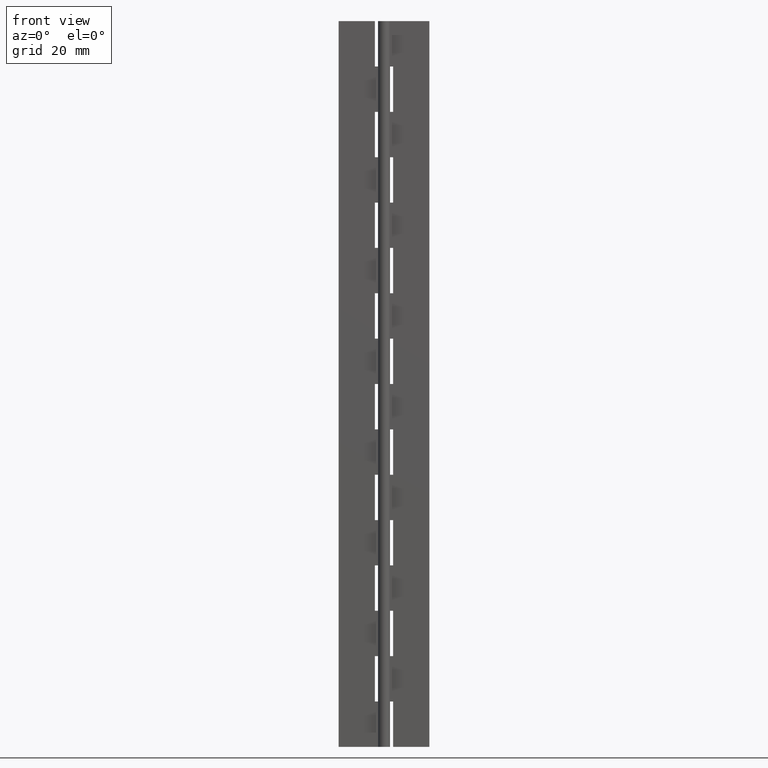
[diagram: clean part render]
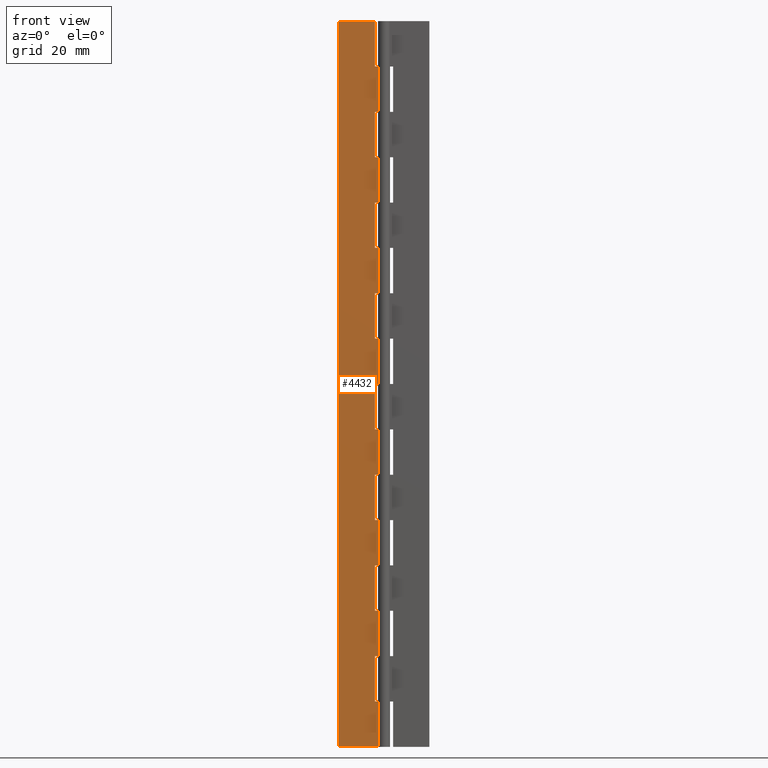
[diagram: same view with one face highlighted and labeled with its STEP entity id]
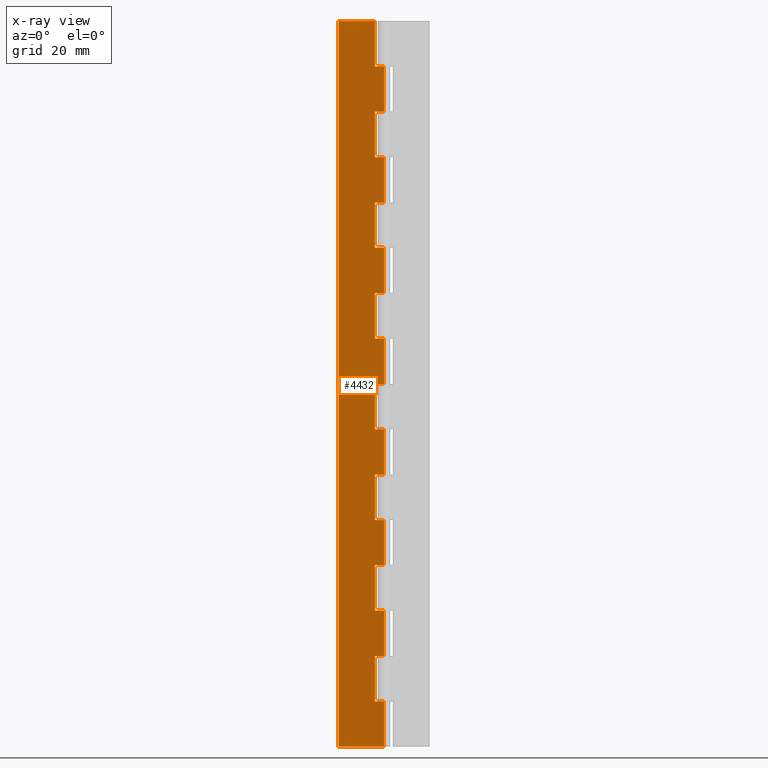
[diagram: x-ray of the same camera — body ghosted, the highlighted face saturated]
A machine part, front view. The second image highlights one B-rep face of the part: STEP entity #4432.
The next image is the same camera in x-ray: the body ghosted, the highlighted face saturated — about 0% of this face is hidden behind the body in this view.
In plain terms, the highlighted face is a freeform B-spline surface patch.
Its self-contained STEP definition (entity closure, byte-faithful):
#2335=CARTESIAN_POINT('',(-1.499999999999986,0.499999999999945,112.500000000000000));
#2336=VERTEX_POINT('',#2335);
#2342=CARTESIAN_POINT('',(3.061230E-017,0.500000000000000,112.500000000000000));
#2343=VERTEX_POINT('',#2342);
#2344=CARTESIAN_POINT('',(3.061230E-017,0.500000000000000,112.500000000000000));
#2345=CARTESIAN_POINT('',(-1.499999999999986,0.499999999999945,112.500000000000000));
#2346=QUASI_UNIFORM_CURVE('',1,(#2344,#2345),.UNSPECIFIED.,.F.,.U.);
#2347=EDGE_CURVE('',#2343,#2336,#2346,.T.);
#2412=CARTESIAN_POINT('',(-1.499999999999986,0.499999999999945,120.0));
#2413=VERTEX_POINT('',#2412);
#2419=CARTESIAN_POINT('',(-1.499999999999986,0.499999999999945,112.500000000000000));
#2420=CARTESIAN_POINT('',(-1.499999999999986,0.499999999999945,120.0));
#2421=QUASI_UNIFORM_CURVE('',1,(#2419,#2420),.UNSPECIFIED.,.F.,.U.);
#2422=EDGE_CURVE('',#2336,#2413,#2421,.T.);
#2462=CARTESIAN_POINT('',(3.061516E-017,0.500000000000000,105.0));
#2463=VERTEX_POINT('',#2462);
#2483=CARTESIAN_POINT('',(-1.499999999999986,0.499999999999945,105.0));
#2484=VERTEX_POINT('',#2483);
#2485=CARTESIAN_POINT('',(-1.499999999999986,0.499999999999945,105.0));
#2486=CARTESIAN_POINT('',(3.061516E-017,0.500000000000000,105.0));
#2487=QUASI_UNIFORM_CURVE('',1,(#2485,#2486),.UNSPECIFIED.,.F.,.U.);
#2488=EDGE_CURVE('',#2484,#2463,#2487,.T.);
#2519=CARTESIAN_POINT('',(-1.499999999999986,0.499999999999945,97.500000000000000));
#2520=VERTEX_POINT('',#2519);
#2526=CARTESIAN_POINT('',(3.061230E-017,0.500000000000000,97.500000000000000));
#2527=VERTEX_POINT('',#2526);
#2528=CARTESIAN_POINT('',(3.061230E-017,0.500000000000000,97.500000000000000));
#2529=CARTESIAN_POINT('',(-1.499999999999986,0.499999999999945,97.500000000000000));
#2530=QUASI_UNIFORM_CURVE('',1,(#2528,#2529),.UNSPECIFIED.,.F.,.U.);
#2531=EDGE_CURVE('',#2527,#2520,#2530,.T.);
#2595=CARTESIAN_POINT('',(-1.499999999999986,0.499999999999945,97.500000000000000));
#2596=CARTESIAN_POINT('',(-1.499999999999986,0.499999999999945,105.0));
#2597=QUASI_UNIFORM_CURVE('',1,(#2595,#2596),.UNSPECIFIED.,.F.,.U.);
#2598=EDGE_CURVE('',#2520,#2484,#2597,.T.);
#2638=CARTESIAN_POINT('',(3.061516E-017,0.500000000000000,90.0));
#2639=VERTEX_POINT('',#2638);
#2659=CARTESIAN_POINT('',(-1.499999999999986,0.499999999999945,90.0));
#2660=VERTEX_POINT('',#2659);
#2661=CARTESIAN_POINT('',(-1.499999999999986,0.499999999999945,90.0));
#2662=CARTESIAN_POINT('',(3.061516E-017,0.500000000000000,90.0));
#2663=QUASI_UNIFORM_CURVE('',1,(#2661,#2662),.UNSPECIFIED.,.F.,.U.);
#2664=EDGE_CURVE('',#2660,#2639,#2663,.T.);
#2695=CARTESIAN_POINT('',(-1.499999999999986,0.499999999999945,82.500000000000000));
#2696=VERTEX_POINT('',#2695);
#2702=CARTESIAN_POINT('',(3.061230E-017,0.500000000000000,82.500000000000000));
#2703=VERTEX_POINT('',#2702);
#2704=CARTESIAN_POINT('',(3.061230E-017,0.500000000000000,82.500000000000000));
#2705=CARTESIAN_POINT('',(-1.499999999999986,0.499999999999945,82.500000000000000));
#2706=QUASI_UNIFORM_CURVE('',1,(#2704,#2705),.UNSPECIFIED.,.F.,.U.);
#2707=EDGE_CURVE('',#2703,#2696,#2706,.T.);
#2771=CARTESIAN_POINT('',(-1.499999999999986,0.499999999999945,82.500000000000000));
#2772=CARTESIAN_POINT('',(-1.499999999999986,0.499999999999945,90.0));
#2773=QUASI_UNIFORM_CURVE('',1,(#2771,#2772),.UNSPECIFIED.,.F.,.U.);
#2774=EDGE_CURVE('',#2696,#2660,#2773,.T.);
#2814=CARTESIAN_POINT('',(3.061516E-017,0.500000000000000,75.0));
#2815=VERTEX_POINT('',#2814);
#2835=CARTESIAN_POINT('',(-1.499999999999986,0.499999999999945,75.0));
#2836=VERTEX_POINT('',#2835);
#2837=CARTESIAN_POINT('',(-1.499999999999986,0.499999999999945,75.0));
#2838=CARTESIAN_POINT('',(3.061516E-017,0.500000000000000,75.0));
#2839=QUASI_UNIFORM_CURVE('',1,(#2837,#2838),.UNSPECIFIED.,.F.,.U.);
#2840=EDGE_CURVE('',#2836,#2815,#2839,.T.);
#2871=CARTESIAN_POINT('',(-1.499999999999986,0.499999999999945,67.500000000000000));
#2872=VERTEX_POINT('',#2871);
#2878=CARTESIAN_POINT('',(3.061230E-017,0.500000000000000,67.500000000000000));
#2879=VERTEX_POINT('',#2878);
#2880=CARTESIAN_POINT('',(3.061230E-017,0.500000000000000,67.500000000000000));
#2881=CARTESIAN_POINT('',(-1.499999999999986,0.499999999999945,67.500000000000000));
#2882=QUASI_UNIFORM_CURVE('',1,(#2880,#2881),.UNSPECIFIED.,.F.,.U.);
#2883=EDGE_CURVE('',#2879,#2872,#2882,.T.);
#2947=CARTESIAN_POINT('',(-1.499999999999986,0.499999999999945,67.500000000000000));
#2948=CARTESIAN_POINT('',(-1.499999999999986,0.499999999999945,75.0));
#2949=QUASI_UNIFORM_CURVE('',1,(#2947,#2948),.UNSPECIFIED.,.F.,.U.);
#2950=EDGE_CURVE('',#2872,#2836,#2949,.T.);
#2990=CARTESIAN_POINT('',(3.061516E-017,0.500000000000000,60.0));
#2991=VERTEX_POINT('',#2990);
#3011=CARTESIAN_POINT('',(-1.499999999999986,0.499999999999945,60.0));
#3012=VERTEX_POINT('',#3011);
#3013=CARTESIAN_POINT('',(-1.499999999999986,0.499999999999945,60.0));
#3014=CARTESIAN_POINT('',(3.061516E-017,0.500000000000000,60.0));
#3015=QUASI_UNIFORM_CURVE('',1,(#3013,#3014),.UNSPECIFIED.,.F.,.U.);
#3016=EDGE_CURVE('',#3012,#2991,#3015,.T.);
#3047=CARTESIAN_POINT('',(-1.499999999999986,0.499999999999945,52.500000000000000));
#3048=VERTEX_POINT('',#3047);
#3054=CARTESIAN_POINT('',(3.061230E-017,0.500000000000000,52.500000000000000));
#3055=VERTEX_POINT('',#3054);
#3056=CARTESIAN_POINT('',(3.061230E-017,0.500000000000000,52.500000000000000));
#3057=CARTESIAN_POINT('',(-1.499999999999986,0.499999999999945,52.500000000000000));
#3058=QUASI_UNIFORM_CURVE('',1,(#3056,#3057),.UNSPECIFIED.,.F.,.U.);
#3059=EDGE_CURVE('',#3055,#3048,#3058,.T.);
#3123=CARTESIAN_POINT('',(-1.499999999999986,0.499999999999945,52.500000000000000));
#3124=CARTESIAN_POINT('',(-1.499999999999986,0.499999999999945,60.0));
#3125=QUASI_UNIFORM_CURVE('',1,(#3123,#3124),.UNSPECIFIED.,.F.,.U.);
#3126=EDGE_CURVE('',#3048,#3012,#3125,.T.);
#3166=CARTESIAN_POINT('',(3.061516E-017,0.500000000000000,45.0));
#3167=VERTEX_POINT('',#3166);
#3187=CARTESIAN_POINT('',(-1.499999999999986,0.499999999999945,45.0));
#3188=VERTEX_POINT('',#3187);
#3189=CARTESIAN_POINT('',(-1.499999999999986,0.499999999999945,45.0));
#3190=CARTESIAN_POINT('',(3.061516E-017,0.500000000000000,45.0));
#3191=QUASI_UNIFORM_CURVE('',1,(#3189,#3190),.UNSPECIFIED.,.F.,.U.);
#3192=EDGE_CURVE('',#3188,#3167,#3191,.T.);
#3223=CARTESIAN_POINT('',(-1.499999999999986,0.499999999999945,37.500000000000000));
#3224=VERTEX_POINT('',#3223);
#3230=CARTESIAN_POINT('',(3.061230E-017,0.500000000000000,37.500000000000000));
#3231=VERTEX_POINT('',#3230);
#3232=CARTESIAN_POINT('',(3.061230E-017,0.500000000000000,37.500000000000000));
#3233=CARTESIAN_POINT('',(-1.499999999999986,0.499999999999945,37.500000000000000));
#3234=QUASI_UNIFORM_CURVE('',1,(#3232,#3233),.UNSPECIFIED.,.F.,.U.);
#3235=EDGE_CURVE('',#3231,#3224,#3234,.T.);
#3299=CARTESIAN_POINT('',(-1.499999999999986,0.499999999999945,37.500000000000000));
#3300=CARTESIAN_POINT('',(-1.499999999999986,0.499999999999945,45.0));
#3301=QUASI_UNIFORM_CURVE('',1,(#3299,#3300),.UNSPECIFIED.,.F.,.U.);
#3302=EDGE_CURVE('',#3224,#3188,#3301,.T.);
#3342=CARTESIAN_POINT('',(3.061516E-017,0.500000000000000,30.0));
#3343=VERTEX_POINT('',#3342);
#3363=CARTESIAN_POINT('',(-1.499999999999986,0.499999999999945,30.0));
#3364=VERTEX_POINT('',#3363);
#3365=CARTESIAN_POINT('',(-1.499999999999986,0.499999999999945,30.0));
#3366=CARTESIAN_POINT('',(3.061516E-017,0.500000000000000,30.0));
#3367=QUASI_UNIFORM_CURVE('',1,(#3365,#3366),.UNSPECIFIED.,.F.,.U.);
#3368=EDGE_CURVE('',#3364,#3343,#3367,.T.);
#3399=CARTESIAN_POINT('',(-1.499999999999986,0.499999999999945,22.500000000000000));
#3400=VERTEX_POINT('',#3399);
#3406=CARTESIAN_POINT('',(3.061230E-017,0.500000000000000,22.500000000000000));
#3407=VERTEX_POINT('',#3406);
#3408=CARTESIAN_POINT('',(3.061230E-017,0.500000000000000,22.500000000000000));
#3409=CARTESIAN_POINT('',(-1.499999999999986,0.499999999999945,22.500000000000000));
#3410=QUASI_UNIFORM_CURVE('',1,(#3408,#3409),.UNSPECIFIED.,.F.,.U.);
#3411=EDGE_CURVE('',#3407,#3400,#3410,.T.);
#3475=CARTESIAN_POINT('',(-1.499999999999986,0.499999999999945,22.500000000000000));
#3476=CARTESIAN_POINT('',(-1.499999999999986,0.499999999999945,30.0));
#3477=QUASI_UNIFORM_CURVE('',1,(#3475,#3476),.UNSPECIFIED.,.F.,.U.);
#3478=EDGE_CURVE('',#3400,#3364,#3477,.T.);
#3518=CARTESIAN_POINT('',(3.061516E-017,0.500000000000000,15.0));
#3519=VERTEX_POINT('',#3518);
#3539=CARTESIAN_POINT('',(-1.499999999999986,0.499999999999945,15.0));
#3540=VERTEX_POINT('',#3539);
#3541=CARTESIAN_POINT('',(-1.499999999999986,0.499999999999945,15.0));
#3542=CARTESIAN_POINT('',(3.061516E-017,0.500000000000000,15.0));
#3543=QUASI_UNIFORM_CURVE('',1,(#3541,#3542),.UNSPECIFIED.,.F.,.U.);
#3544=EDGE_CURVE('',#3540,#3519,#3543,.T.);
#3575=CARTESIAN_POINT('',(-1.499999999999986,0.499999999999945,7.500000000000000));
#3576=VERTEX_POINT('',#3575);
#3582=CARTESIAN_POINT('',(3.061230E-017,0.500000000000000,7.500000000000000));
#3583=VERTEX_POINT('',#3582);
#3584=CARTESIAN_POINT('',(3.061230E-017,0.500000000000000,7.500000000000000));
#3585=CARTESIAN_POINT('',(-1.499999999999986,0.499999999999945,7.500000000000000));
#3586=QUASI_UNIFORM_CURVE('',1,(#3584,#3585),.UNSPECIFIED.,.F.,.U.);
#3587=EDGE_CURVE('',#3583,#3576,#3586,.T.);
#3651=CARTESIAN_POINT('',(-1.499999999999986,0.499999999999945,7.500000000000000));
#3652=CARTESIAN_POINT('',(-1.499999999999986,0.499999999999945,15.0));
#3653=QUASI_UNIFORM_CURVE('',1,(#3651,#3652),.UNSPECIFIED.,.F.,.U.);
#3654=EDGE_CURVE('',#3576,#3540,#3653,.T.);
#3664=CARTESIAN_POINT('',(-7.500000000000000,0.500000000000000,0.0));
#3665=VERTEX_POINT('',#3664);
#3708=CARTESIAN_POINT('',(3.061516E-017,0.500000000000000,0.0));
#3709=VERTEX_POINT('',#3708);
#3729=CARTESIAN_POINT('',(3.061516E-017,0.500000000000000,0.0));
#3730=CARTESIAN_POINT('',(-7.500000000000000,0.500000000000000,0.0));
#3731=QUASI_UNIFORM_CURVE('',1,(#3729,#3730),.UNSPECIFIED.,.F.,.U.);
#3732=EDGE_CURVE('',#3709,#3665,#3731,.T.);
#3743=CARTESIAN_POINT('',(-7.500000000000000,0.500000000000000,120.0));
#3744=VERTEX_POINT('',#3743);
#3745=CARTESIAN_POINT('',(-7.500000000000000,0.500000000000000,120.0));
#3746=CARTESIAN_POINT('',(-7.500000000000000,0.500000000000000,0.0));
#3747=QUASI_UNIFORM_CURVE('',1,(#3745,#3746),.UNSPECIFIED.,.F.,.U.);
#3748=EDGE_CURVE('',#3744,#3665,#3747,.T.);
#3788=CARTESIAN_POINT('',(3.061230E-017,0.500000000000000,7.500000000000000));
#3789=CARTESIAN_POINT('',(3.061516E-017,0.500000000000000,0.0));
#3790=QUASI_UNIFORM_CURVE('',1,(#3788,#3789),.UNSPECIFIED.,.F.,.U.);
#3791=EDGE_CURVE('',#3583,#3709,#3790,.T.);
#3874=CARTESIAN_POINT('',(3.061230E-017,0.500000000000000,22.500000000000000));
#3875=CARTESIAN_POINT('',(3.061516E-017,0.500000000000000,15.0));
#3876=QUASI_UNIFORM_CURVE('',1,(#3874,#3875),.UNSPECIFIED.,.F.,.U.);
#3877=EDGE_CURVE('',#3407,#3519,#3876,.T.);
#3960=CARTESIAN_POINT('',(3.061230E-017,0.500000000000000,37.500000000000000));
#3961=CARTESIAN_POINT('',(3.061516E-017,0.500000000000000,30.0));
#3962=QUASI_UNIFORM_CURVE('',1,(#3960,#3961),.UNSPECIFIED.,.F.,.U.);
#3963=EDGE_CURVE('',#3231,#3343,#3962,.T.);
#4046=CARTESIAN_POINT('',(3.061230E-017,0.500000000000000,52.500000000000000));
#4047=CARTESIAN_POINT('',(3.061516E-017,0.500000000000000,45.0));
#4048=QUASI_UNIFORM_CURVE('',1,(#4046,#4047),.UNSPECIFIED.,.F.,.U.);
#4049=EDGE_CURVE('',#3055,#3167,#4048,.T.);
#4132=CARTESIAN_POINT('',(3.061230E-017,0.500000000000000,67.500000000000000));
#4133=CARTESIAN_POINT('',(3.061516E-017,0.500000000000000,60.0));
#4134=QUASI_UNIFORM_CURVE('',1,(#4132,#4133),.UNSPECIFIED.,.F.,.U.);
#4135=EDGE_CURVE('',#2879,#2991,#4134,.T.);
#4218=CARTESIAN_POINT('',(3.061230E-017,0.500000000000000,82.500000000000000));
#4219=CARTESIAN_POINT('',(3.061516E-017,0.500000000000000,75.0));
#4220=QUASI_UNIFORM_CURVE('',1,(#4218,#4219),.UNSPECIFIED.,.F.,.U.);
#4221=EDGE_CURVE('',#2703,#2815,#4220,.T.);
#4304=CARTESIAN_POINT('',(3.061230E-017,0.500000000000000,97.500000000000000));
#4305=CARTESIAN_POINT('',(3.061516E-017,0.500000000000000,90.0));
#4306=QUASI_UNIFORM_CURVE('',1,(#4304,#4305),.UNSPECIFIED.,.F.,.U.);
#4307=EDGE_CURVE('',#2527,#2639,#4306,.T.);
#4379=CARTESIAN_POINT('',(-1.499999999999986,0.499999999999945,120.0));
#4380=CARTESIAN_POINT('',(-7.500000000000000,0.500000000000000,120.0));
#4381=QUASI_UNIFORM_CURVE('',1,(#4379,#4380),.UNSPECIFIED.,.F.,.U.);
#4382=EDGE_CURVE('',#2413,#3744,#4381,.T.);
#4387=CARTESIAN_POINT('',(-7.874624985463544,0.500000000000000,125.993999767416700));
#4388=CARTESIAN_POINT('',(-7.874624985463544,0.500000000000000,-5.994002986067534));
#4389=CARTESIAN_POINT('',(0.374625186629221,0.500000000000000,125.993999767416700));
#4390=CARTESIAN_POINT('',(0.374625186629221,0.500000000000000,-5.994002986067534));
#4391=B_SPLINE_SURFACE_WITH_KNOTS('',1,1,((#4387,#4389),(#4388,#4390)),.UNSPECIFIED.,.F.,.F.,.U.,(2,2),(2,2),(0.0,131.988002753484210),(0.0,8.249250172092765),.UNSPECIFIED.);
#4392=ORIENTED_EDGE('',*,*,#2347,.T.);
#4393=ORIENTED_EDGE('',*,*,#2422,.T.);
#4394=ORIENTED_EDGE('',*,*,#4382,.T.);
#4395=ORIENTED_EDGE('',*,*,#3748,.T.);
#4396=ORIENTED_EDGE('',*,*,#3732,.F.);
#4397=ORIENTED_EDGE('',*,*,#3791,.F.);
#4398=ORIENTED_EDGE('',*,*,#3587,.T.);
#4399=ORIENTED_EDGE('',*,*,#3654,.T.);
#4400=ORIENTED_EDGE('',*,*,#3544,.T.);
#4401=ORIENTED_EDGE('',*,*,#3877,.F.);
#4402=ORIENTED_EDGE('',*,*,#3411,.T.);
#4403=ORIENTED_EDGE('',*,*,#3478,.T.);
#4404=ORIENTED_EDGE('',*,*,#3368,.T.);
#4405=ORIENTED_EDGE('',*,*,#3963,.F.);
#4406=ORIENTED_EDGE('',*,*,#3235,.T.);
#4407=ORIENTED_EDGE('',*,*,#3302,.T.);
#4408=ORIENTED_EDGE('',*,*,#3192,.T.);
#4409=ORIENTED_EDGE('',*,*,#4049,.F.);
#4410=ORIENTED_EDGE('',*,*,#3059,.T.);
#4411=ORIENTED_EDGE('',*,*,#3126,.T.);
#4412=ORIENTED_EDGE('',*,*,#3016,.T.);
#4413=ORIENTED_EDGE('',*,*,#4135,.F.);
#4414=ORIENTED_EDGE('',*,*,#2883,.T.);
#4415=ORIENTED_EDGE('',*,*,#2950,.T.);
#4416=ORIENTED_EDGE('',*,*,#2840,.T.);
#4417=ORIENTED_EDGE('',*,*,#4221,.F.);
#4418=ORIENTED_EDGE('',*,*,#2707,.T.);
#4419=ORIENTED_EDGE('',*,*,#2774,.T.);
#4420=ORIENTED_EDGE('',*,*,#2664,.T.);
#4421=ORIENTED_EDGE('',*,*,#4307,.F.);
#4422=ORIENTED_EDGE('',*,*,#2531,.T.);
#4423=ORIENTED_EDGE('',*,*,#2598,.T.);
#4424=ORIENTED_EDGE('',*,*,#2488,.T.);
#4425=CARTESIAN_POINT('',(3.061230E-017,0.500000000000000,112.500000000000000));
#4426=CARTESIAN_POINT('',(3.061516E-017,0.500000000000000,105.0));
#4427=QUASI_UNIFORM_CURVE('',1,(#4425,#4426),.UNSPECIFIED.,.F.,.U.);
#4428=EDGE_CURVE('',#2343,#2463,#4427,.T.);
#4429=ORIENTED_EDGE('',*,*,#4428,.F.);
#4430=EDGE_LOOP('',(#4392,#4393,#4394,#4395,#4396,#4397,#4398,#4399,#4400,#4401,#4402,#4403,#4404,#4405,#4406,#4407,#4408,#4409,#4410,#4411,#4412,#4413,#4414,#4415,#4416,#4417,#4418,#4419,#4420,#4421,#4422,#4423,#4424,#4429));
#4431=FACE_OUTER_BOUND('',#4430,.T.);
#4432=ADVANCED_FACE('',(#4431),#4391,.T.);